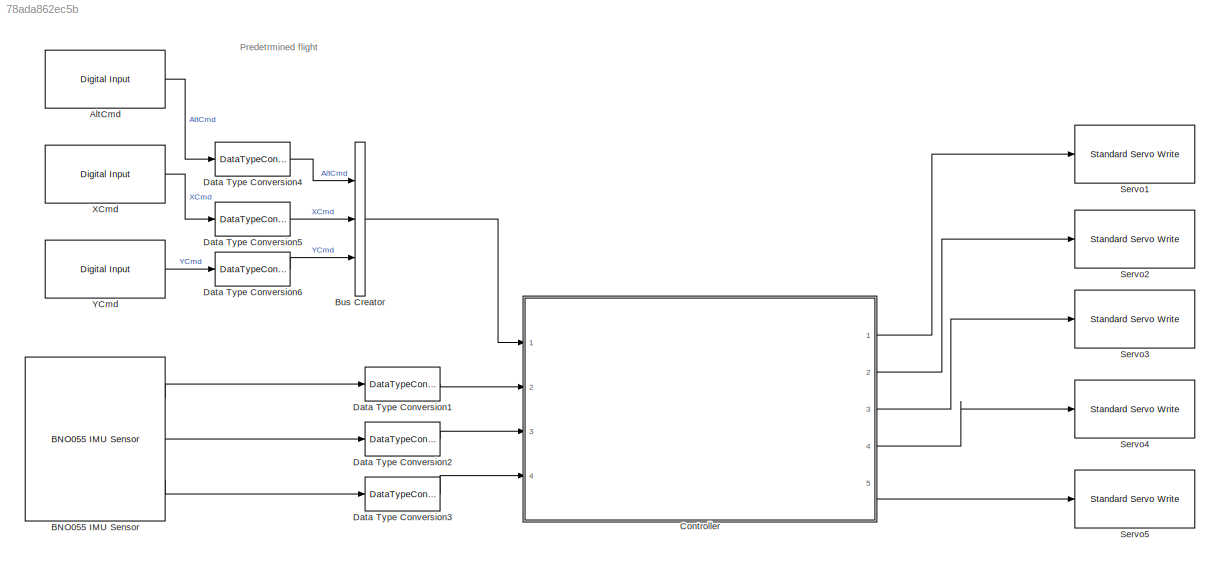
MODEL slx_78ada862ec5b
KIND model
CONFIG AbsTol = auto
CONFIG EnableMultiTasking = on
CONFIG FixedStep = 1/50
CONFIG MaxStep = auto
CONFIG MinStep = auto
CONFIG RelTol = 1e-3
CONFIG SampleTimeConstraint = Unconstrained
CONFIG SolverName = FixedStepAuto
CONFIG StartTime = 0.0
CONFIG StopTime = 10.0
BLOCK [Reference] AltCmd  REF=arduinolib/Digital Input
  Ports = [0, 1]
  SourceBlock = arduinolib/Digital Input
  SourceProductBaseCode = ARDUINO
  SourceType = Arduino Digital Input
BLOCK [Reference] BNO055 IMU Sensor  REF=arduinosensorlib/BNO055 IMU Sensor
  Ports = [0, 3]
  SourceBlock = arduinosensorlib/BNO055 IMU Sensor
  SourceProductBaseCode = ARDUINO
  SourceType = Arduino BNO055
BLOCK [BusCreator] Bus Creator
  DisplayOption = bar
  InheritFromInputs = on
  Inputs = 3
  Ports = [3, 1]
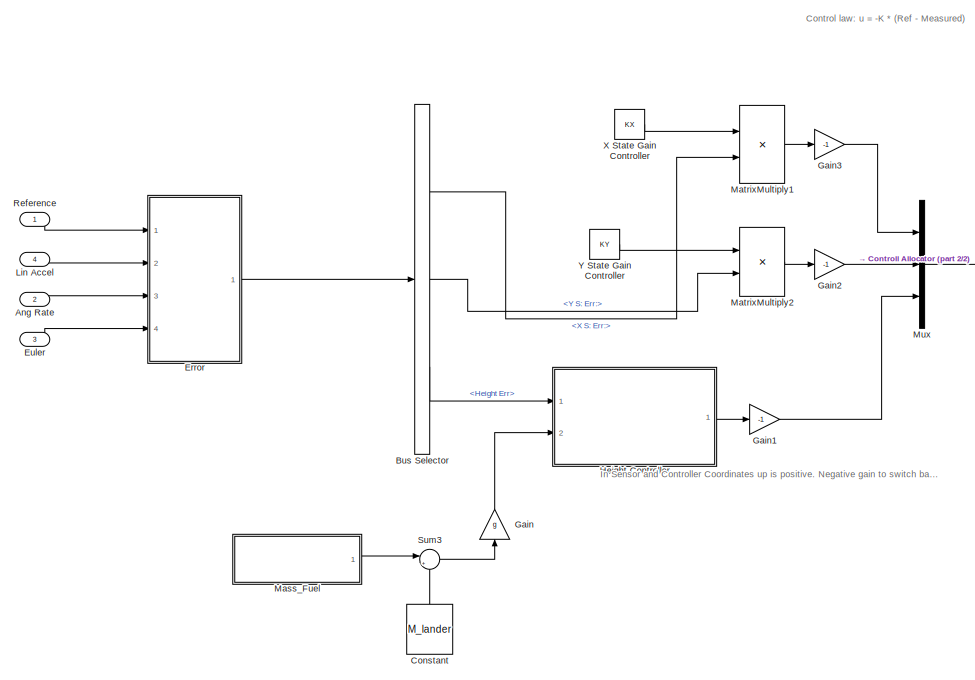
[diagram: Controller - part 1/2, left side, full height]
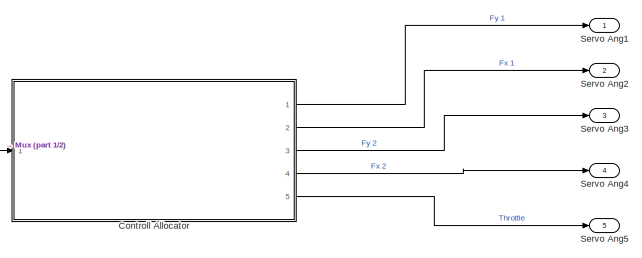
[diagram: Controller - part 2/2, middle right region]
BLOCK [SubSystem] Controller
  Ports = [4, 5]
  RequestExecContextInheritance = off
  TreatAsAtomicUnit = on
BLOCK [Inport] Controller/Ang Rate
  Port = 2
BLOCK [BusSelector] Controller/Bus Selector
  OutputSignals = X S: Err:,Y S: Err:,Height Err
  Ports = [1, 3]
BLOCK [Constant] Controller/Constant
  NameLocation = right
  Value = M_lander
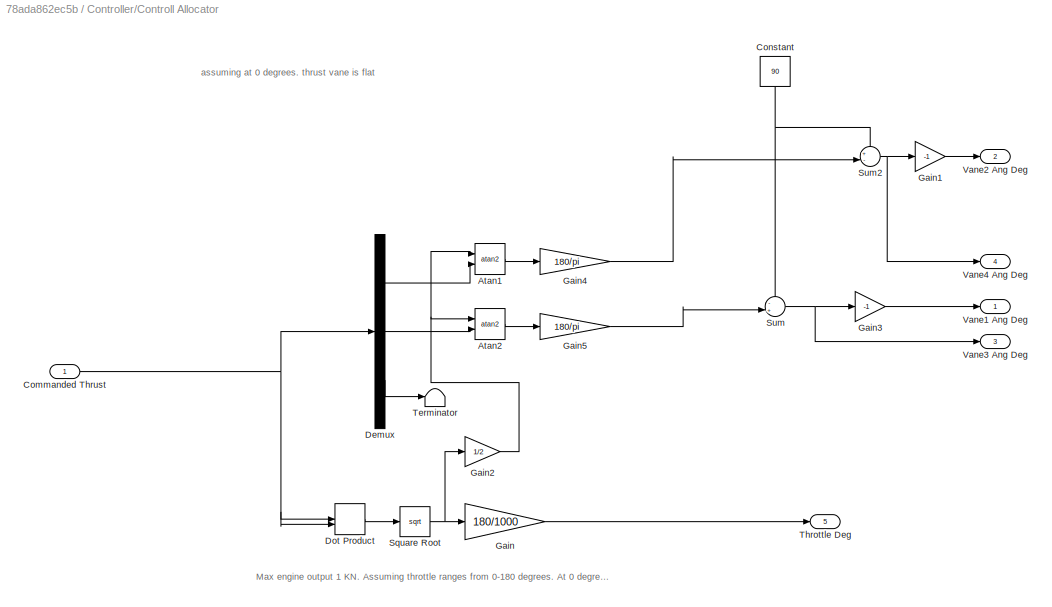
BLOCK [SubSystem] Controller/Controll Allocator
  Ports = [1, 5]
  RequestExecContextInheritance = off
BLOCK [Trigonometry] Controller/Controll Allocator/Atan1
  Operator = atan2
  Ports = [2, 1]
BLOCK [Trigonometry] Controller/Controll Allocator/Atan2
  Operator = atan2
  Ports = [2, 1]
BLOCK [Inport] Controller/Controll Allocator/Commanded Thrust
BLOCK [Constant] Controller/Controll Allocator/Constant
  NameLocation = left
  Value = 90
BLOCK [Demux] Controller/Controll Allocator/Demux
  Outputs = 3
  Ports = [1, 3]
BLOCK [DotProduct] Controller/Controll Allocator/Dot Product
  OutDataTypeStr = Inherit: Inherit via internal rule
BLOCK [Gain] Controller/Controll Allocator/Gain
  Gain = 180/1000
BLOCK [Gain] Controller/Controll Allocator/Gain1
  Gain = -1
BLOCK [Gain] Controller/Controll Allocator/Gain2
  Gain = 1/2
BLOCK [Gain] Controller/Controll Allocator/Gain3
  Gain = -1
BLOCK [Gain] Controller/Controll Allocator/Gain4
  Gain = 180/pi
BLOCK [Gain] Controller/Controll Allocator/Gain5
  Gain = 180/pi
BLOCK [Sqrt] Controller/Controll Allocator/Square Root
BLOCK [Sum] Controller/Controll Allocator/Sum
  Inputs = -+|
  Ports = [2, 1]
BLOCK [Sum] Controller/Controll Allocator/Sum2
  Inputs = +-|
  Ports = [2, 1]
BLOCK [Terminator] Controller/Controll Allocator/Terminator
BLOCK [Outport] Controller/Controll Allocator/Throttle Deg
  Port = 5
BLOCK [Outport] Controller/Controll Allocator/Vane1 Ang Deg
BLOCK [Outport] Controller/Controll Allocator/Vane2 Ang Deg
  Port = 2
BLOCK [Outport] Controller/Controll Allocator/Vane3 Ang Deg
  Port = 3
BLOCK [Outport] Controller/Controll Allocator/Vane4 Ang Deg
  Port = 4
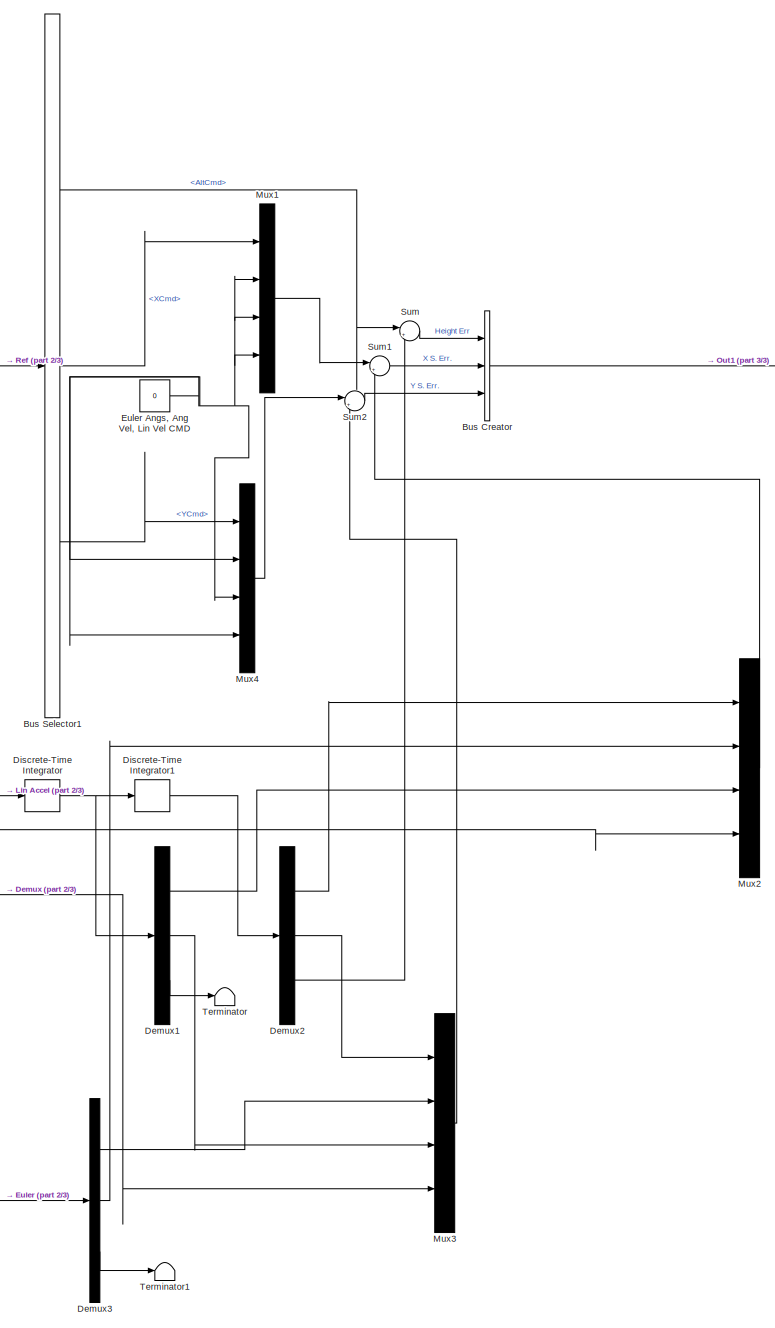
[diagram: Controller/Error - part 1/3, center side, full height]
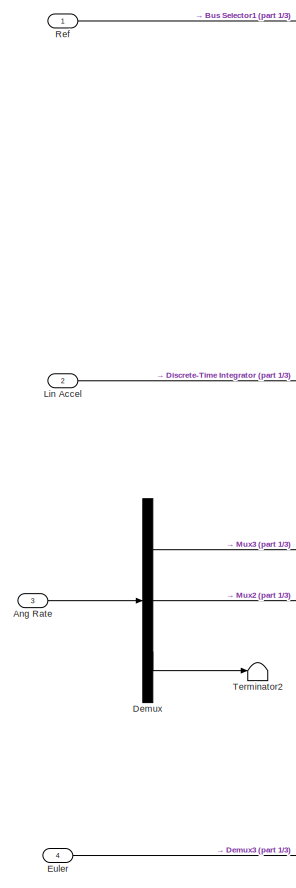
[diagram: Controller/Error - part 2/3, middle left region]
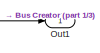
[diagram: Controller/Error - part 3/3, top right region]
BLOCK [SubSystem] Controller/Error
  Ports = [4, 1]
  RequestExecContextInheritance = off
BLOCK [Inport] Controller/Error/Ang Rate
  Port = 3
BLOCK [BusCreator] Controller/Error/Bus Creator
  DisplayOption = bar
  InheritFromInputs = on
  Inputs = 3
  Ports = [3, 1]
BLOCK [BusSelector] Controller/Error/Bus Selector1
  OutputSignals = AltCmd,XCmd,YCmd
  Ports = [1, 3]
BLOCK [Demux] Controller/Error/Demux
  Outputs = 3
  Ports = [1, 3]
BLOCK [Demux] Controller/Error/Demux1
  Outputs = 3
  Ports = [1, 3]
BLOCK [Demux] Controller/Error/Demux2
  Outputs = 3
  Ports = [1, 3]
BLOCK [Demux] Controller/Error/Demux3
  Outputs = 3
  Ports = [1, 3]
BLOCK [DiscreteIntegrator] Controller/Error/Discrete-Time Integrator
  ICPrevOutput = DiscIntNeverNeededParam
  ICPrevScaledInput = DiscIntNeverNeededParam
  InitialConditionSetting = Auto
  Ports = [1, 1]
  SampleTime = 1/50
BLOCK [DiscreteIntegrator] Controller/Error/Discrete-Time Integrator1
  ICPrevOutput = DiscIntNeverNeededParam
  ICPrevScaledInput = DiscIntNeverNeededParam
  InitialConditionSetting = Auto
  Ports = [1, 1]
  SampleTime = 1/50
BLOCK [Inport] Controller/Error/Euler
  Port = 4
BLOCK [Constant] Controller/Error/Euler Angs, Ang Vel, Lin Vel  CMD
  Value = 0
BLOCK [Inport] Controller/Error/Lin Accel
  Port = 2
BLOCK [Mux] Controller/Error/Mux1
  DisplayOption = bar
  Ports = [4, 1]
BLOCK [Mux] Controller/Error/Mux2
  DisplayOption = bar
  Ports = [4, 1]
BLOCK [Mux] Controller/Error/Mux3
  DisplayOption = bar
  Ports = [4, 1]
BLOCK [Mux] Controller/Error/Mux4
  DisplayOption = bar
  Ports = [4, 1]
BLOCK [Outport] Controller/Error/Out1
BLOCK [Inport] Controller/Error/Ref
BLOCK [Sum] Controller/Error/Sum
  Inputs = |+-
  Ports = [2, 1]
BLOCK [Sum] Controller/Error/Sum1
  Inputs = |+-
  Ports = [2, 1]
BLOCK [Sum] Controller/Error/Sum2
  Inputs = |+-
  Ports = [2, 1]
BLOCK [Terminator] Controller/Error/Terminator
BLOCK [Terminator] Controller/Error/Terminator1
BLOCK [Terminator] Controller/Error/Terminator2
BLOCK [Inport] Controller/Euler
  Port = 3
BLOCK [Gain] Controller/Gain
  Gain = g
  NameLocation = right
BLOCK [Gain] Controller/Gain1
  Gain = -1
BLOCK [Gain] Controller/Gain2
  Gain = -1
BLOCK [Gain] Controller/Gain3
  Gain = -1
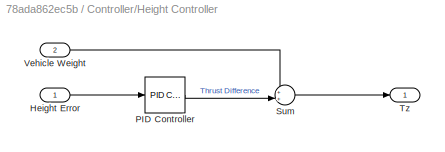
BLOCK [SubSystem] Controller/Height Controller
  Ports = [2, 1]
  RequestExecContextInheritance = off
BLOCK [Inport] Controller/Height Controller/Height Error
BLOCK [Reference] Controller/Height Controller/PID Controller  REF=slpidlib/PID Controller
  Ports = [1, 1]
  SourceBlock = slpidlib/PID Controller
  SourceProductBaseCode = SL
  SourceType = PID 1dof
BLOCK [Sum] Controller/Height Controller/Sum
  Inputs = ++|
  Ports = [2, 1]
BLOCK [Outport] Controller/Height Controller/Tz
BLOCK [Inport] Controller/Height Controller/Vehicle Weight
  Port = 2
BLOCK [Inport] Controller/Lin Accel
  Port = 4
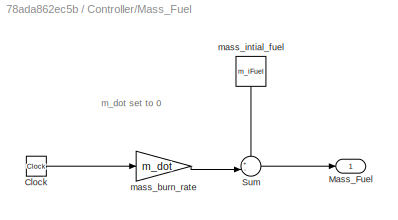
BLOCK [SubSystem] Controller/Mass_Fuel
  Ports = [0, 1]
  RequestExecContextInheritance = off
BLOCK [Clock] Controller/Mass_Fuel/Clock
BLOCK [Outport] Controller/Mass_Fuel/Mass_Fuel
BLOCK [Sum] Controller/Mass_Fuel/Sum
  Inputs = +-|
  Ports = [2, 1]
BLOCK [Gain] Controller/Mass_Fuel/mass_burn_rate
  Gain = m_dot
BLOCK [Constant] Controller/Mass_Fuel/mass_intial_fuel
  NameLocation = left
  Value = m_iFuel
BLOCK [Product] Controller/MatrixMultiply1
  Multiplication = Matrix(*)
  Ports = [2, 1]
BLOCK [Product] Controller/MatrixMultiply2
  Multiplication = Matrix(*)
  Ports = [2, 1]
BLOCK [Mux] Controller/Mux
  DisplayOption = bar
  Inputs = 3
  Ports = [3, 1]
BLOCK [Inport] Controller/Reference
BLOCK [Outport] Controller/Servo Ang1
BLOCK [Outport] Controller/Servo Ang2
  Port = 2
BLOCK [Outport] Controller/Servo Ang3
  Port = 3
BLOCK [Outport] Controller/Servo Ang4
  Port = 4
BLOCK [Outport] Controller/Servo Ang5
  Port = 5
BLOCK [Sum] Controller/Sum3
  Inputs = |++
  Ports = [2, 1]
BLOCK [Constant] Controller/X State Gain Controller
  Value = KX
  VectorParams1D = off
BLOCK [Constant] Controller/Y State Gain Controller
  Value = KY
  VectorParams1D = off
BLOCK [DataTypeConversion] Data Type Conversion1
  RndMeth = Floor
  SaturateOnIntegerOverflow = off
BLOCK [DataTypeConversion] Data Type Conversion2
  RndMeth = Floor
  SaturateOnIntegerOverflow = off
BLOCK [DataTypeConversion] Data Type Conversion3
  RndMeth = Floor
  SaturateOnIntegerOverflow = off
BLOCK [DataTypeConversion] Data Type Conversion4
  RndMeth = Floor
  SaturateOnIntegerOverflow = off
BLOCK [DataTypeConversion] Data Type Conversion5
  RndMeth = Floor
  SaturateOnIntegerOverflow = off
BLOCK [DataTypeConversion] Data Type Conversion6
  RndMeth = Floor
  SaturateOnIntegerOverflow = off
BLOCK [Reference] Servo1  REF=arduinolib/Standard Servo Write
  Ports = [1]
  SourceBlock = arduinolib/Standard Servo Write
  SourceProductBaseCode = ARDUINO
  SourceType = Arduino Standard Servo Write
BLOCK [Reference] Servo2  REF=arduinolib/Standard Servo Write
  Ports = [1]
  SourceBlock = arduinolib/Standard Servo Write
  SourceProductBaseCode = ARDUINO
  SourceType = Arduino Standard Servo Write
BLOCK [Reference] Servo3  REF=arduinolib/Standard Servo Write
  Ports = [1]
  SourceBlock = arduinolib/Standard Servo Write
  SourceProductBaseCode = ARDUINO
  SourceType = Arduino Standard Servo Write
BLOCK [Reference] Servo4  REF=arduinolib/Standard Servo Write
  Ports = [1]
  SourceBlock = arduinolib/Standard Servo Write
  SourceProductBaseCode = ARDUINO
  SourceType = Arduino Standard Servo Write
BLOCK [Reference] Servo5  REF=arduinolib/Standard Servo Write
  Ports = [1]
  SourceBlock = arduinolib/Standard Servo Write
  SourceProductBaseCode = ARDUINO
  SourceType = Arduino Standard Servo Write
BLOCK [Reference] XCmd  REF=arduinolib/Digital Input
  Ports = [0, 1]
  SourceBlock = arduinolib/Digital Input
  SourceProductBaseCode = ARDUINO
  SourceType = Arduino Digital Input
BLOCK [Reference] YCmd  REF=arduinolib/Digital Input
  Ports = [0, 1]
  SourceBlock = arduinolib/Digital Input
  SourceProductBaseCode = ARDUINO
  SourceType = Arduino Digital Input
ANNOTATION (root): Predetrmined flight
ANNOTATION Controller: Control law: u = -K * (Ref - Measured)
ANNOTATION Controller: In Sensor and Controller Coordinates up is positive. Negative gain to switch back to NED
ANNOTATION Controller/Controll Allocator: Max engine output 1 KN. Assuming throttle ranges from 0-180 degrees. At 0 degrees = 0 thrust. at 180 deg = 1 Kn
ANNOTATION Controller/Controll Allocator: assuming at 0 degrees. thrust vane is flat
ANNOTATION Controller/Mass_Fuel: m_dot set to 0
LINE AltCmd:1 -> Data Type Conversion4:1
LINE BNO055 IMU Sensor:1 -> Data Type Conversion1:1
LINE BNO055 IMU Sensor:2 -> Data Type Conversion2:1
LINE BNO055 IMU Sensor:3 -> Data Type Conversion3:1
LINE Bus Creator:1 -> Controller:1
LINE Controller/Ang Rate:1 -> Controller/Error:3
LINE Controller/Bus Selector:1 -> Controller/MatrixMultiply1:2
LINE Controller/Bus Selector:2 -> Controller/MatrixMultiply2:2
LINE Controller/Bus Selector:3 -> Controller/Height Controller:1
LINE Controller/Constant:1 -> Controller/Sum3:2
LINE Controller/Controll Allocator/Atan1:1 -> Controller/Controll Allocator/Gain4:1
LINE Controller/Controll Allocator/Atan2:1 -> Controller/Controll Allocator/Gain5:1
NET Controller/Controll Allocator/Commanded Thrust:1 -> Controller/Controll Allocator/Demux:1, Controller/Controll Allocator/Dot Product:1, Controller/Controll Allocator/Dot Product:2
NET Controller/Controll Allocator/Constant:1 -> Controller/Controll Allocator/Sum2:1, Controller/Controll Allocator/Sum:1
LINE Controller/Controll Allocator/Demux:1 -> Controller/Controll Allocator/Atan1:2
LINE Controller/Controll Allocator/Demux:2 -> Controller/Controll Allocator/Atan2:2
LINE Controller/Controll Allocator/Demux:3 -> Controller/Controll Allocator/Terminator:1
LINE Controller/Controll Allocator/Dot Product:1 -> Controller/Controll Allocator/Square Root:1
LINE Controller/Controll Allocator/Gain1:1 -> Controller/Controll Allocator/Vane2 Ang Deg:1
NET Controller/Controll Allocator/Gain2:1 -> Controller/Controll Allocator/Atan1:1, Controller/Controll Allocator/Atan2:1
LINE Controller/Controll Allocator/Gain3:1 -> Controller/Controll Allocator/Vane1 Ang Deg:1
LINE Controller/Controll Allocator/Gain4:1 -> Controller/Controll Allocator/Sum2:2
LINE Controller/Controll Allocator/Gain5:1 -> Controller/Controll Allocator/Sum:2
LINE Controller/Controll Allocator/Gain:1 -> Controller/Controll Allocator/Throttle Deg:1
NET Controller/Controll Allocator/Square Root:1 -> Controller/Controll Allocator/Gain2:1, Controller/Controll Allocator/Gain:1
NET Controller/Controll Allocator/Sum2:1 -> Controller/Controll Allocator/Gain1:1, Controller/Controll Allocator/Vane4 Ang Deg:1
NET Controller/Controll Allocator/Sum:1 -> Controller/Controll Allocator/Gain3:1, Controller/Controll Allocator/Vane3 Ang Deg:1
LINE Controller/Controll Allocator:1 -> Controller/Servo Ang1:1
LINE Controller/Controll Allocator:2 -> Controller/Servo Ang2:1
LINE Controller/Controll Allocator:3 -> Controller/Servo Ang3:1
LINE Controller/Controll Allocator:4 -> Controller/Servo Ang4:1
LINE Controller/Controll Allocator:5 -> Controller/Servo Ang5:1
LINE Controller/Error/Ang Rate:1 -> Controller/Error/Demux:1
LINE Controller/Error/Bus Creator:1 -> Controller/Error/Out1:1
LINE Controller/Error/Bus Selector1:1 -> Controller/Error/Sum:1
LINE Controller/Error/Bus Selector1:2 -> Controller/Error/Mux1:1
LINE Controller/Error/Bus Selector1:3 -> Controller/Error/Mux4:1
LINE Controller/Error/Demux1:1 -> Controller/Error/Mux2:3
LINE Controller/Error/Demux1:2 -> Controller/Error/Mux3:3
LINE Controller/Error/Demux1:3 -> Controller/Error/Terminator:1
LINE Controller/Error/Demux2:1 -> Controller/Error/Mux2:1
LINE Controller/Error/Demux2:2 -> Controller/Error/Mux3:1
LINE Controller/Error/Demux2:3 -> Controller/Error/Sum:2
LINE Controller/Error/Demux3:1 -> Controller/Error/Mux3:2
LINE Controller/Error/Demux3:2 -> Controller/Error/Mux2:2
LINE Controller/Error/Demux3:3 -> Controller/Error/Terminator1:1
LINE Controller/Error/Demux:1 -> Controller/Error/Mux3:4
LINE Controller/Error/Demux:2 -> Controller/Error/Mux2:4
LINE Controller/Error/Demux:3 -> Controller/Error/Terminator2:1
LINE Controller/Error/Discrete-Time Integrator1:1 -> Controller/Error/Demux2:1
NET Controller/Error/Discrete-Time Integrator:1 -> Controller/Error/Demux1:1, Controller/Error/Discrete-Time Integrator1:1
NET Controller/Error/Euler Angs, Ang Vel, Lin Vel  CMD:1 -> Controller/Error/Mux1:2, Controller/Error/Mux1:3, Controller/Error/Mux1:4, Controller/Error/Mux4:2, Controller/Error/Mux4:3, Controller/Error/Mux4:4
LINE Controller/Error/Euler:1 -> Controller/Error/Demux3:1
LINE Controller/Error/Lin Accel:1 -> Controller/Error/Discrete-Time Integrator:1
LINE Controller/Error/Mux1:1 -> Controller/Error/Sum1:1
LINE Controller/Error/Mux2:1 -> Controller/Error/Sum1:2
LINE Controller/Error/Mux3:1 -> Controller/Error/Sum2:2
LINE Controller/Error/Mux4:1 -> Controller/Error/Sum2:1
LINE Controller/Error/Ref:1 -> Controller/Error/Bus Selector1:1
LINE Controller/Error/Sum1:1 -> Controller/Error/Bus Creator:2
LINE Controller/Error/Sum2:1 -> Controller/Error/Bus Creator:3
LINE Controller/Error/Sum:1 -> Controller/Error/Bus Creator:1
LINE Controller/Error:1 -> Controller/Bus Selector:1
LINE Controller/Euler:1 -> Controller/Error:4
LINE Controller/Gain1:1 -> Controller/Mux:3
LINE Controller/Gain2:1 -> Controller/Mux:2
LINE Controller/Gain3:1 -> Controller/Mux:1
LINE Controller/Gain:1 -> Controller/Height Controller:2
LINE Controller/Height Controller/Height Error:1 -> Controller/Height Controller/PID Controller:1
LINE Controller/Height Controller/PID Controller:1 -> Controller/Height Controller/Sum:2
LINE Controller/Height Controller/Sum:1 -> Controller/Height Controller/Tz:1
LINE Controller/Height Controller/Vehicle Weight:1 -> Controller/Height Controller/Sum:1
LINE Controller/Height Controller:1 -> Controller/Gain1:1
LINE Controller/Lin Accel:1 -> Controller/Error:2
LINE Controller/Mass_Fuel/Clock:1 -> Controller/Mass_Fuel/mass_burn_rate:1
LINE Controller/Mass_Fuel/Sum:1 -> Controller/Mass_Fuel/Mass_Fuel:1
LINE Controller/Mass_Fuel/mass_burn_rate:1 -> Controller/Mass_Fuel/Sum:2
LINE Controller/Mass_Fuel/mass_intial_fuel:1 -> Controller/Mass_Fuel/Sum:1
LINE Controller/Mass_Fuel:1 -> Controller/Sum3:1
LINE Controller/MatrixMultiply1:1 -> Controller/Gain3:1
LINE Controller/MatrixMultiply2:1 -> Controller/Gain2:1
LINE Controller/Mux:1 -> Controller/Controll Allocator:1
LINE Controller/Reference:1 -> Controller/Error:1
LINE Controller/Sum3:1 -> Controller/Gain:1
LINE Controller/X State Gain Controller:1 -> Controller/MatrixMultiply1:1
LINE Controller/Y State Gain Controller:1 -> Controller/MatrixMultiply2:1
LINE Controller:1 -> Servo1:1
LINE Controller:2 -> Servo2:1
LINE Controller:3 -> Servo3:1
LINE Controller:4 -> Servo4:1
LINE Controller:5 -> Servo5:1
LINE Data Type Conversion1:1 -> Controller:2
LINE Data Type Conversion2:1 -> Controller:3
LINE Data Type Conversion3:1 -> Controller:4
LINE Data Type Conversion4:1 -> Bus Creator:1
LINE Data Type Conversion5:1 -> Bus Creator:2
LINE Data Type Conversion6:1 -> Bus Creator:3
LINE XCmd:1 -> Data Type Conversion5:1
LINE YCmd:1 -> Data Type Conversion6:1
note: NET lines group one-source signal fan-out (src -> all destinations, sorted); 1:1 wires keep LINE
